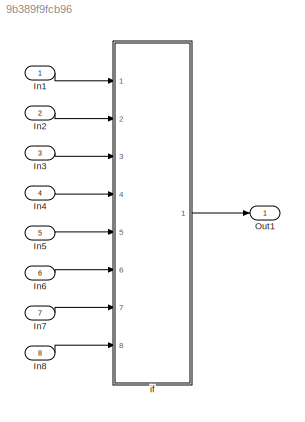
MODEL slx_9b389f9fcb96
KIND model
CONFIG AbsTol = auto
CONFIG EnableMultiTasking = off
CONFIG FixedStep = auto
CONFIG MaxStep = auto
CONFIG MinStep = auto
CONFIG RelTol = 1e-3
CONFIG SampleTimeConstraint = Unconstrained
CONFIG Solver = FixedStepDiscrete
CONFIG SolverName = FixedStepDiscrete
CONFIG StartTime = 0.0
CONFIG StopTime = 10.0
BLOCK [Inport] In1
  IconDisplay = Port number
BLOCK [Inport] In2
  IconDisplay = Port number
  Port = 2
BLOCK [Inport] In3
  IconDisplay = Port number
  Port = 3
BLOCK [Inport] In4
  IconDisplay = Port number
  Port = 4
BLOCK [Inport] In5
  IconDisplay = Port number
  Port = 5
BLOCK [Inport] In6
  IconDisplay = Port number
  Port = 6
BLOCK [Inport] In7
  IconDisplay = Port number
  Port = 7
BLOCK [Inport] In8
  IconDisplay = Port number
  Port = 8
BLOCK [Outport] Out1
  IconDisplay = Port number
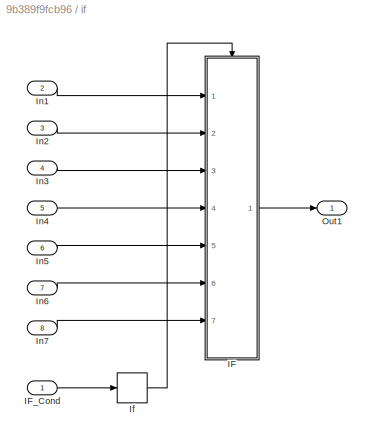
BLOCK [SubSystem] if
  AncestorBlock = Block_TestLib/if
  Ports = [8, 1]
  RequestExecContextInheritance = off
  Variant = off
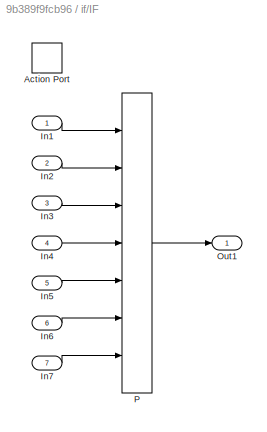
BLOCK [SubSystem] if/IF
  Ports = [7, 1, 0, 0, 0, 0, 0, 1]
  RequestExecContextInheritance = off
  TreatAsAtomicUnit = on
  Variant = off
BLOCK [ActionPort] if/IF/Action Port
  ActionType = then
BLOCK [Inport] if/IF/In1
  IconDisplay = Port number
  OutMax = 127
  OutMin = 0
  PortDimensions = 3
BLOCK [Inport] if/IF/In2
  IconDisplay = Port number
  OutMax = 127
  OutMin = 0
  Port = 2
BLOCK [Inport] if/IF/In3
  IconDisplay = Port number
  OutMax = 127
  OutMin = 0
  Port = 3
BLOCK [Inport] if/IF/In4
  IconDisplay = Port number
  OutMax = 127
  OutMin = 0
  Port = 4
BLOCK [Inport] if/IF/In5
  IconDisplay = Port number
  OutMax = 127
  OutMin = 0
  Port = 5
BLOCK [Inport] if/IF/In6
  IconDisplay = Port number
  OutMax = 127
  OutMin = 0
  Port = 6
BLOCK [Inport] if/IF/In7
  IconDisplay = Port number
  OutMax = 127
  OutMin = 0
  Port = 7
BLOCK [Outport] if/IF/Out1
  IconDisplay = Port number
BLOCK [Lookup_n-D] if/IF/P
  BreakpointsForDimension1FirstPoint = 72.1235
  BreakpointsForDimension1Spacing = 1.5
  BreakpointsForDimension2FirstPoint = 16.0159
  BreakpointsForDimension2Spacing = 1.5
  BreakpointsForDimension3 = [5, 7]
  BreakpointsForDimension3FirstPoint = 6.2063
  BreakpointsForDimension3Spacing = 1.5
  BreakpointsForDimension4FirstPoint = 103.2728
  BreakpointsForDimension4Spacing = 1.5
  BreakpointsForDimension5FirstPoint = 25.5836
  BreakpointsForDimension5Spacing = 1.5
  BreakpointsForDimension6FirstPoint = 91.301
  BreakpointsForDimension6Spacing = 1.5
  BreakpointsForDimension7FirstPoint = 86.994
  BreakpointsForDimension7Spacing = 1.5
  BreakpointsSpecification = Even spacing
  InternalRulePriority = Speed
  InterpMethod = Nearest
  NumberOfTableDimensions = 7
  Ports = [7, 1]
  RndMeth = Simplest
  Table = reshape(repmat([4 5 6 7 8;16 19 20 21 22;10 18 23 24 25],18,8),[2,5,3,2,3,4,3])
  UseLastTableValue = on
BLOCK [Inport] if/IF_Cond
  IconDisplay = Port number
  OutDataTypeStr = boolean
BLOCK [If] if/If
  IfExpression = u1
  Ports = [1, 1]
  ShowElse = off
BLOCK [Inport] if/In1
  IconDisplay = Port number
  Port = 2
BLOCK [Inport] if/In2
  IconDisplay = Port number
  Port = 3
BLOCK [Inport] if/In3
  IconDisplay = Port number
  Port = 4
BLOCK [Inport] if/In4
  IconDisplay = Port number
  Port = 5
BLOCK [Inport] if/In5
  IconDisplay = Port number
  Port = 6
BLOCK [Inport] if/In6
  IconDisplay = Port number
  Port = 7
BLOCK [Inport] if/In7
  IconDisplay = Port number
  Port = 8
BLOCK [Outport] if/Out1
  IconDisplay = Port number
LINE In1:1 -> if:1
LINE In2:1 -> if:2
LINE In3:1 -> if:3
LINE In4:1 -> if:4
LINE In5:1 -> if:5
LINE In6:1 -> if:6
LINE In7:1 -> if:7
LINE In8:1 -> if:8
LINE if:1 -> Out1:1
